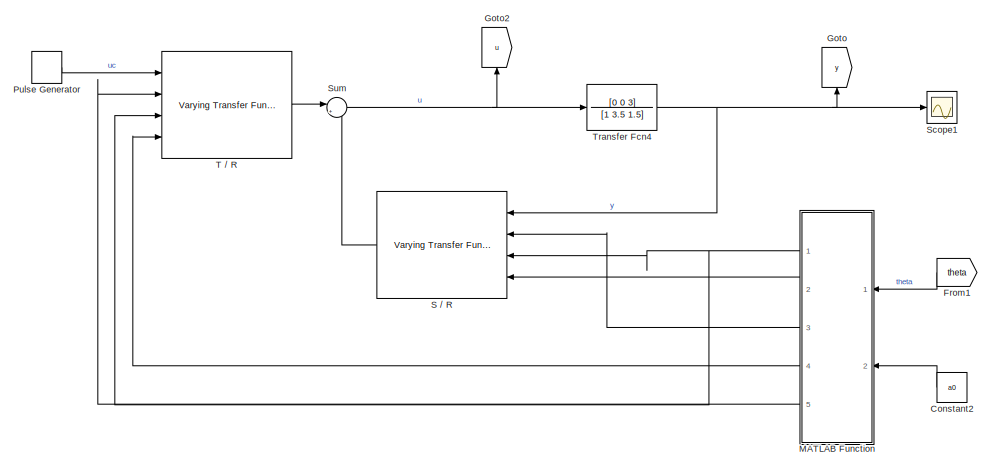
[diagram: root canvas - part 1/2, top left region]
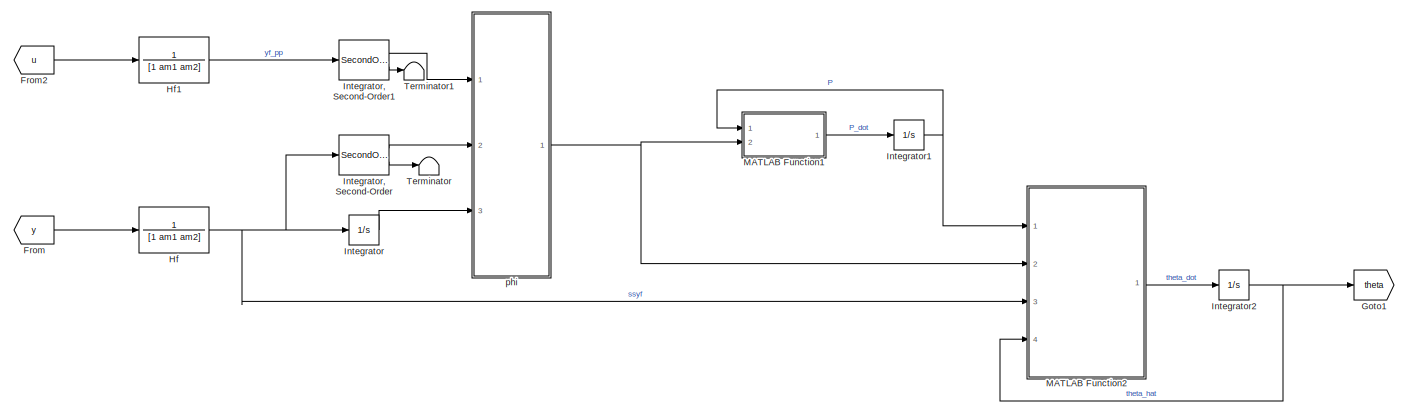
[diagram: root canvas - part 2/2, full width, bottom band]
MODEL slx_63a030714132
KIND model
CONFIG AbsTol = auto
CONFIG EnableMultiTasking = off
CONFIG FixedStep = auto
CONFIG MaxStep = 1e-4
CONFIG MinStep = auto
CONFIG RelTol = 1e-3
CONFIG SampleTimeConstraint = Unconstrained
CONFIG SolverName = VariableStepAuto
CONFIG StartTime = 0.0
CONFIG StopTime = 10.0
BLOCK [Constant] Constant2
  NameLocation = top
  Value = a0
BLOCK [From] From
  GotoTag = y
BLOCK [From] From1
  GotoTag = theta
  NameLocation = top
BLOCK [From] From2
  GotoTag = u
BLOCK [Goto] Goto
  GotoTag = y
  NameLocation = right
BLOCK [Goto] Goto1
  GotoTag = theta
BLOCK [Goto] Goto2
  GotoTag = u
  NameLocation = right
BLOCK [TransferFcn] Hf
  Denominator = [1 am1 am2]
  Numerator = 1
BLOCK [TransferFcn] Hf1
  Denominator = [1 am1 am2]
  Numerator = 1
BLOCK [Integrator] Integrator
  Ports = [1, 1]
BLOCK [SecondOrderIntegrator] Integrator, Second-Order
  Ports = [1, 2]
BLOCK [SecondOrderIntegrator] Integrator, Second-Order1
  Ports = [1, 2]
BLOCK [Integrator] Integrator1
  InitialCondition = P0
  Ports = [1, 1]
BLOCK [Integrator] Integrator2
  InitialCondition = ones(3,1)
  Ports = [1, 1]
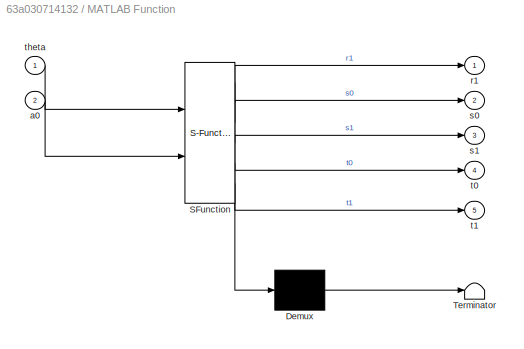
BLOCK [SubSystem] MATLAB Function
  ErrorFcn = Stateflow.Translate.translate
  NameLocation = top
  PermitHierarchicalResolution = ExplicitOnly
  Ports = [2, 5]
  RequestExecContextInheritance = off
  SFBlockType = MATLAB Function
  TreatAsAtomicUnit = on
BLOCK [Demux] MATLAB Function/ Demux 
  Outputs = 1
  Ports = [1, 1]
BLOCK [S-Function] MATLAB Function/ SFunction 
  EnableBusSupport = on
  FunctionName = sf_sfun
  PortCounts = [2 6]
  Ports = [2, 6]
  SFcnIsStateOwnerBlock = off
  SFunctionDeploymentMode = off
  Tag = Stateflow S-Function 2
BLOCK [Terminator] MATLAB Function/ Terminator 
BLOCK [Inport] MATLAB Function/a0
  Port = 2
BLOCK [Outport] MATLAB Function/r1
BLOCK [Outport] MATLAB Function/s0
  Port = 2
BLOCK [Outport] MATLAB Function/s1
  Port = 3
BLOCK [Outport] MATLAB Function/t0
  Port = 4
BLOCK [Outport] MATLAB Function/t1
  Port = 5
BLOCK [Inport] MATLAB Function/theta
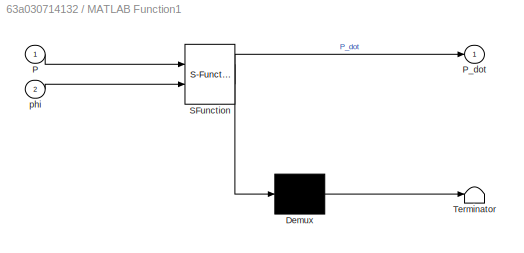
BLOCK [SubSystem] MATLAB Function1
  ErrorFcn = Stateflow.Translate.translate
  PermitHierarchicalResolution = ExplicitOnly
  Ports = [2, 1]
  RequestExecContextInheritance = off
  SFBlockType = MATLAB Function
  TreatAsAtomicUnit = on
BLOCK [Demux] MATLAB Function1/ Demux 
  Outputs = 1
  Ports = [1, 1]
BLOCK [S-Function] MATLAB Function1/ SFunction 
  EnableBusSupport = on
  FunctionName = sf_sfun
  PortCounts = [2 2]
  Ports = [2, 2]
  SFcnIsStateOwnerBlock = off
  SFunctionDeploymentMode = off
  Tag = Stateflow S-Function 3
BLOCK [Terminator] MATLAB Function1/ Terminator 
BLOCK [Inport] MATLAB Function1/P
BLOCK [Outport] MATLAB Function1/P_dot
BLOCK [Inport] MATLAB Function1/phi
  Port = 2
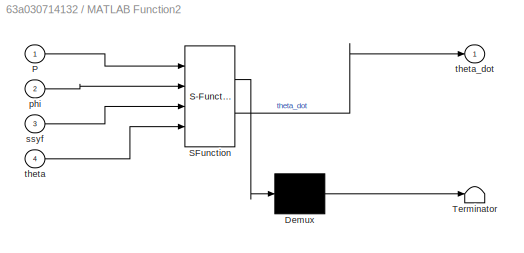
BLOCK [SubSystem] MATLAB Function2
  ErrorFcn = Stateflow.Translate.translate
  PermitHierarchicalResolution = ExplicitOnly
  Ports = [4, 1]
  RequestExecContextInheritance = off
  SFBlockType = MATLAB Function
  TreatAsAtomicUnit = on
BLOCK [Demux] MATLAB Function2/ Demux 
  Outputs = 1
  Ports = [1, 1]
BLOCK [S-Function] MATLAB Function2/ SFunction 
  EnableBusSupport = on
  FunctionName = sf_sfun
  PortCounts = [4 2]
  Ports = [4, 2]
  SFcnIsStateOwnerBlock = off
  SFunctionDeploymentMode = off
  Tag = Stateflow S-Function 4
BLOCK [Terminator] MATLAB Function2/ Terminator 
BLOCK [Inport] MATLAB Function2/P
BLOCK [Inport] MATLAB Function2/phi
  Port = 2
BLOCK [Inport] MATLAB Function2/ssyf
  Port = 3
BLOCK [Inport] MATLAB Function2/theta
  Port = 4
BLOCK [Outport] MATLAB Function2/theta_dot
BLOCK [DiscretePulseGenerator] Pulse Generator
  Period = 5
  Ports = [0, 1]
  PulseType = Time based
  PulseWidth = 50
BLOCK [Reference] S // R  REF=cstblocks/Linear Parameter Varying/Varying Transfer Function
  NameLocation = top
  Ports = [4, 1]
  SourceBlock = cstblocks/Linear Parameter Varying/Varying Transfer Function
  SourceProductBaseCode = CT
  SourceType = Varying Transfer Function
BLOCK [Scope] Scope1
  Floating = off
  NumInputPorts = 1
  Ports = [1]
  ScopeSpecificationString = Simulink.scopes.TimeScopeBlockCfg('CurrentConfiguration', extmgr.ConfigurationSet(extmgr.Configuration('Core','General UI',true),extmgr.Configuration('Core','Source UI',true),extmgr.Configuration('Sources','WiredSimulink',true),extmgr.Configuration('Visuals','Time Domain',true,'SerializedDisplays',{struct('MinYLimReal','-0.20896','MaxYLimReal','1.21003','YLabelReal','','MinYLimMag','0.00000','MaxY...<+1353ch>
BLOCK [Sum] Sum
  Inputs = |+-
  Ports = [2, 1]
BLOCK [Reference] T // R  REF=cstblocks/Linear Parameter Varying/Varying Transfer Function
  Ports = [4, 1]
  SourceBlock = cstblocks/Linear Parameter Varying/Varying Transfer Function
  SourceProductBaseCode = CT
  SourceType = Varying Transfer Function
BLOCK [Terminator] Terminator
BLOCK [Terminator] Terminator1
BLOCK [TransferFcn] Transfer Fcn4
  Denominator = [1 3.5 1.5]
  Numerator = [0 0 3]
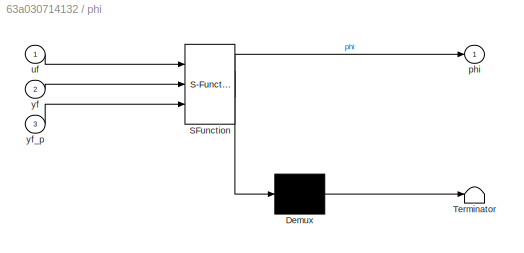
BLOCK [SubSystem] phi
  ErrorFcn = Stateflow.Translate.translate
  PermitHierarchicalResolution = ExplicitOnly
  Ports = [3, 1]
  RequestExecContextInheritance = off
  SFBlockType = MATLAB Function
  TreatAsAtomicUnit = on
BLOCK [Demux] phi/ Demux 
  Outputs = 1
  Ports = [1, 1]
BLOCK [S-Function] phi/ SFunction 
  EnableBusSupport = on
  FunctionName = sf_sfun
  PortCounts = [3 2]
  Ports = [3, 2]
  SFcnIsStateOwnerBlock = off
  SFunctionDeploymentMode = off
  Tag = Stateflow S-Function 1
BLOCK [Terminator] phi/ Terminator 
BLOCK [Outport] phi/phi
BLOCK [Inport] phi/uf
BLOCK [Inport] phi/yf
  Port = 2
BLOCK [Inport] phi/yf_p
  Port = 3
LINE Constant2:1 -> MATLAB Function:2
LINE From1:1 -> MATLAB Function:1
LINE From2:1 -> Hf1:1
LINE From:1 -> Hf:1
LINE Hf1:1 -> Integrator, Second-Order1:1
NET Hf:1 -> Integrator, Second-Order:1, Integrator:1, MATLAB Function2:3
LINE Integrator, Second-Order1:1 -> phi:1
LINE Integrator, Second-Order1:2 -> Terminator1:1
LINE Integrator, Second-Order:1 -> phi:2
LINE Integrator, Second-Order:2 -> Terminator:1
NET Integrator1:1 -> MATLAB Function1:1, MATLAB Function2:1
NET Integrator2:1 -> Goto1:1, MATLAB Function2:4
LINE Integrator:1 -> phi:3
LINE MATLAB Function1:1 -> Integrator1:1
LINE MATLAB Function2:1 -> Integrator2:1
NET MATLAB Function:1 -> S // R:3, T // R:3
LINE MATLAB Function:2 -> S // R:4
LINE MATLAB Function:3 -> S // R:2
LINE MATLAB Function:4 -> T // R:4
LINE MATLAB Function:5 -> T // R:2
LINE Pulse Generator:1 -> T // R:1
LINE S // R:1 -> Sum:2
NET Sum:1 -> Goto2:1, Transfer Fcn4:1
LINE T // R:1 -> Sum:1
NET Transfer Fcn4:1 -> Goto:1, S // R:1, Scope1:1
NET phi:1 -> MATLAB Function1:2, MATLAB Function2:2
note: NET lines group one-source signal fan-out (src -> all destinations, sorted); 1:1 wires keep LINE
CHART phi states=1 transitions=1
  STATE_LABEL 'eML_blk_kernel()'
  STATE_LABEL "SCRIPT:\nfunction phi = fcn(uf, yf, yf_p)\n\nphi = [-yf_p -yf uf]';\n\nend\n"
CHART MATLAB Function states=1 transitions=1
  STATE_LABEL 'eML_blk_kernel()'
  STATE_LABEL 'SCRIPT:\nfunction [r1,s0,s1,t0,t1] = fcn(theta,a0)\n\nwn = 6;\nzeta = 0.65;\n\nr1 = 2*zeta*wn + a0 -theta(1);\ns0 = (wn^2 + 2*a0*zeta*wn - theta(1)*r1 - theta(2))/theta(3);\ns1 = ((wn^2*a0)-theta(2)*r1)/theta(3);\nt0 = wn^2/theta(3);\nt1 = a0 * wn^2 /theta(3);\n\nend\n\n'
CHART MATLAB Function1 states=1 transitions=1
  STATE_LABEL 'eML_blk_kernel()'
  STATE_LABEL "SCRIPT:\nfunction P_dot = fcn(P,phi)\n\nalpha = 0.05;\nP_dot = alpha * P - P * (phi * phi') * P;\n\nend\n"
CHART MATLAB Function2 states=1 transitions=1
  STATE_LABEL 'eML_blk_kernel()'
  STATE_LABEL "SCRIPT:\nfunction theta_dot = fcn(P, phi, ssyf, theta)\n\ntheta_dot = P*phi*(ssyf-phi'*theta);\n\nend\n"
CHART  states=0 transitions=0
CHART  states=0 transitions=0
CHART  states=0 transitions=0
CHART  states=0 transitions=0
